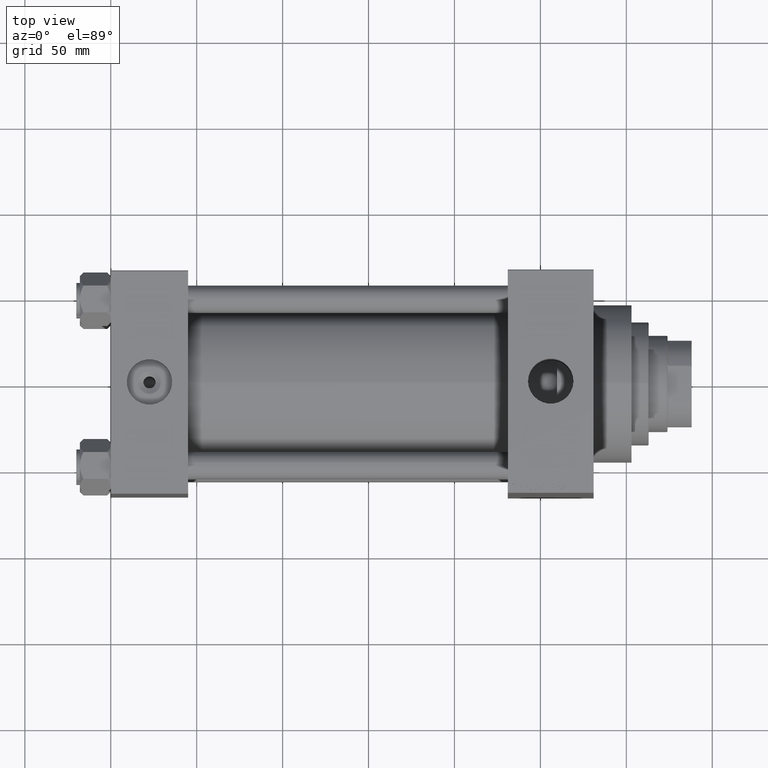
[diagram: clean part render]
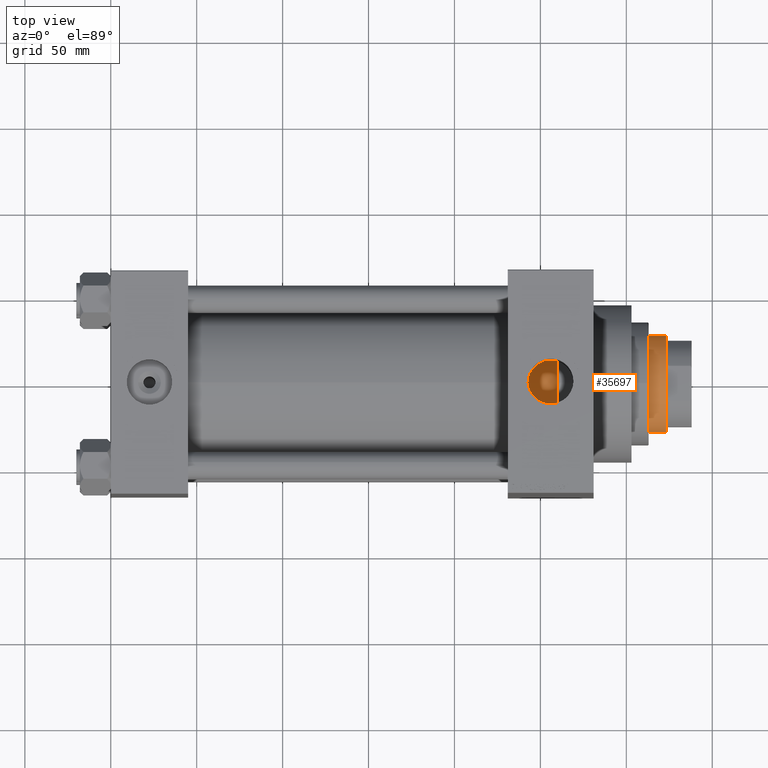
[diagram: same view with one face highlighted and labeled with its STEP entity id]
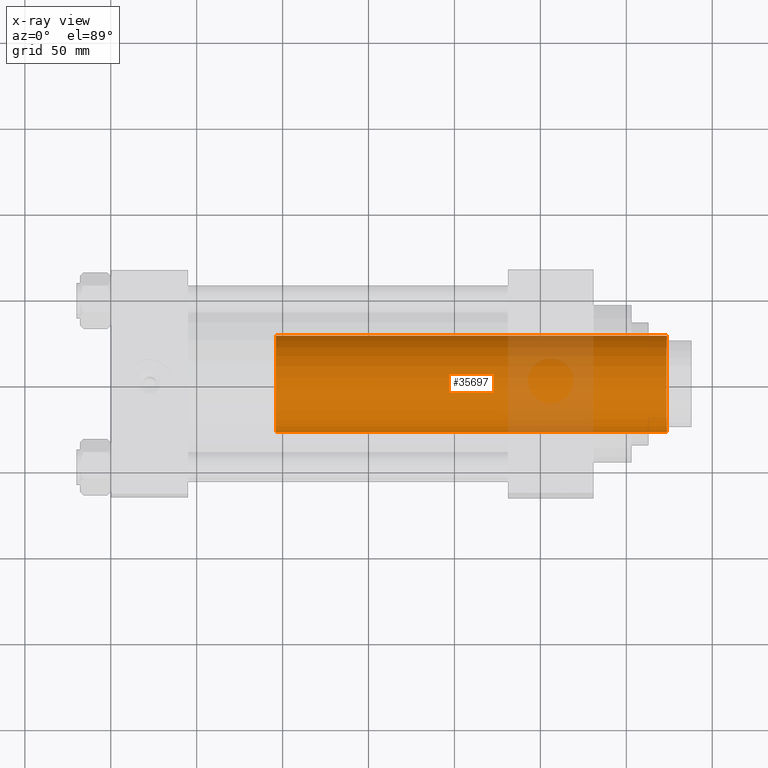
[diagram: x-ray of the same camera — body ghosted, the highlighted face saturated]
A machine part, top view. The second image highlights one B-rep face of the part: STEP entity #35697.
The next image is the same camera in x-ray: the body ghosted, the highlighted face saturated — about 18% of this face is hidden behind the body in this view.
In plain terms, the highlighted cylindrical surface (partial cylindrical patch) has radius 28 mm, axis along (-1, 0, 0).
Its self-contained STEP definition (entity closure, byte-faithful):
#149 = DIRECTION ( 'NONE',  ( -1.000000000000000000, 0.000000000000000000, 0.000000000000000000 ) ) ;
#4831 = CARTESIAN_POINT ( 'NONE',  ( 28.00000000000000000, 3.429011037612588487E-15, 51.00000000000000000 ) ) ;
#7099 = VECTOR ( 'NONE', #28480, 1000.000000000000000 ) ;
#11497 = DIRECTION ( 'NONE',  ( -0.000000000000000000, -0.000000000000000000, -1.000000000000000000 ) ) ;
#12021 = CARTESIAN_POINT ( 'NONE',  ( -28.00000000000000000, 0.000000000000000000, 278.5000000000001137 ) ) ;
#12171 = VERTEX_POINT ( 'NONE', #4831 ) ;
#12995 = CIRCLE ( 'NONE', #42277, 28.00000000000000000 ) ;
#13748 = CARTESIAN_POINT ( 'NONE',  ( -28.00000000000000000, 0.000000000000000000, 279.0000000000000000 ) ) ;
#14110 = VERTEX_POINT ( 'NONE', #12021 ) ;
#17916 = ORIENTED_EDGE ( 'NONE', *, *, #25870, .F. ) ;
#18975 = CARTESIAN_POINT ( 'NONE',  ( 0.000000000000000000, 0.000000000000000000, 279.0000000000000000 ) ) ;
#19494 = VERTEX_POINT ( 'NONE', #41103 ) ;
#20724 = AXIS2_PLACEMENT_3D ( 'NONE', #18975, #11497, #149 ) ;
#20910 = CARTESIAN_POINT ( 'NONE',  ( 0.000000000000000000, 0.000000000000000000, 278.5000000000001137 ) ) ;
#21008 = LINE ( 'NONE', #13748, #7099 ) ;
#21138 = ORIENTED_EDGE ( 'NONE', *, *, #24071, .T. ) ;
#21352 = DIRECTION ( 'NONE',  ( 0.000000000000000000, 0.000000000000000000, 1.000000000000000000 ) ) ;
#21981 = VECTOR ( 'NONE', #41900, 1000.000000000000000 ) ;
#24071 = EDGE_CURVE ( 'NONE', #19494, #14110, #32722, .T. ) ;
#24261 = DIRECTION ( 'NONE',  ( 1.000000000000000000, 0.000000000000000000, 0.000000000000000000 ) ) ;
#24768 = DIRECTION ( 'NONE',  ( 0.000000000000000000, 0.000000000000000000, -1.000000000000000000 ) ) ;
#25870 = EDGE_CURVE ( 'NONE', #19494, #12171, #28124, .T. ) ;
#25951 = ORIENTED_EDGE ( 'NONE', *, *, #35139, .T. ) ;
#28124 = LINE ( 'NONE', #30803, #21981 ) ;
#28307 = CARTESIAN_POINT ( 'NONE',  ( -28.00000000000000000, 0.000000000000000000, 51.00000000000000000 ) ) ;
#28480 = DIRECTION ( 'NONE',  ( -0.000000000000000000, -0.000000000000000000, -1.000000000000000000 ) ) ;
#30803 = CARTESIAN_POINT ( 'NONE',  ( 28.00000000000000000, 3.429011037612588487E-15, 279.0000000000000000 ) ) ;
#32722 = CIRCLE ( 'NONE', #33516, 28.00000000000000000 ) ;
#33226 = CYLINDRICAL_SURFACE ( 'NONE', #20724, 28.00000000000000000 ) ;
#33516 = AXIS2_PLACEMENT_3D ( 'NONE', #20910, #24768, #35630 ) ;
#35139 = EDGE_CURVE ( 'NONE', #39190, #12171, #12995, .T. ) ;
#35630 = DIRECTION ( 'NONE',  ( 1.000000000000000000, 0.000000000000000000, 0.000000000000000000 ) ) ;
#35697 = ADVANCED_FACE ( 'NONE', ( #44804 ), #33226, .T. ) ;
#39190 = VERTEX_POINT ( 'NONE', #28307 ) ;
#41103 = CARTESIAN_POINT ( 'NONE',  ( 28.00000000000000000, 3.429011037612588487E-15, 278.5000000000001137 ) ) ;
#41900 = DIRECTION ( 'NONE',  ( -0.000000000000000000, -0.000000000000000000, -1.000000000000000000 ) ) ;
#42277 = AXIS2_PLACEMENT_3D ( 'NONE', #46465, #21352, #24261 ) ;
#43023 = EDGE_LOOP ( 'NONE', ( #17916, #21138, #43355, #25951 ) ) ;
#43355 = ORIENTED_EDGE ( 'NONE', *, *, #47260, .T. ) ;
#44804 = FACE_OUTER_BOUND ( 'NONE', #43023, .T. ) ;
#46465 = CARTESIAN_POINT ( 'NONE',  ( 0.000000000000000000, 0.000000000000000000, 51.00000000000000000 ) ) ;
#47260 = EDGE_CURVE ( 'NONE', #14110, #39190, #21008, .T. ) ;